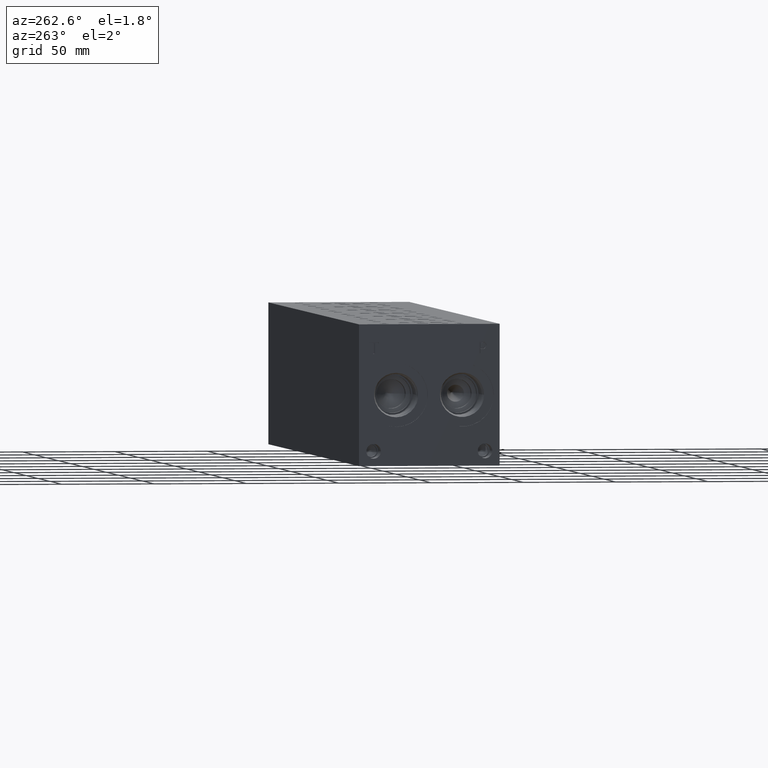
[diagram: clean part render]
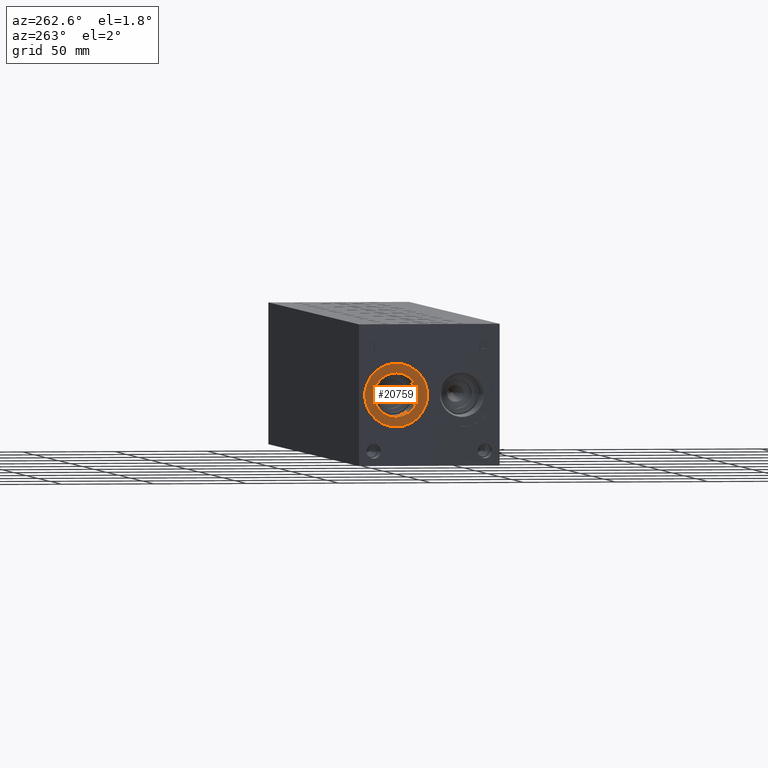
[diagram: same view with one face highlighted and labeled with its STEP entity id]
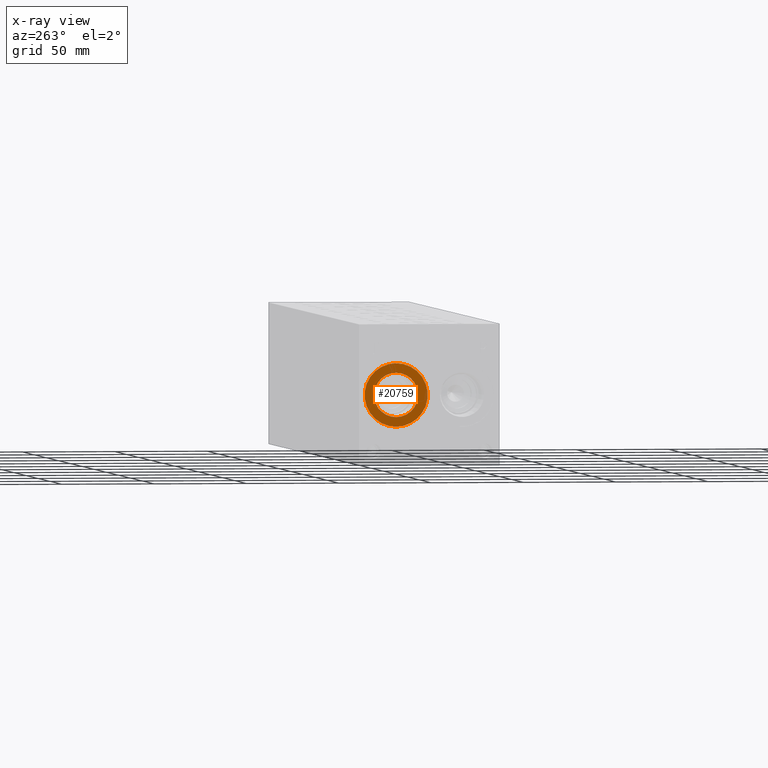
[diagram: x-ray of the same camera — body ghosted, the highlighted face saturated]
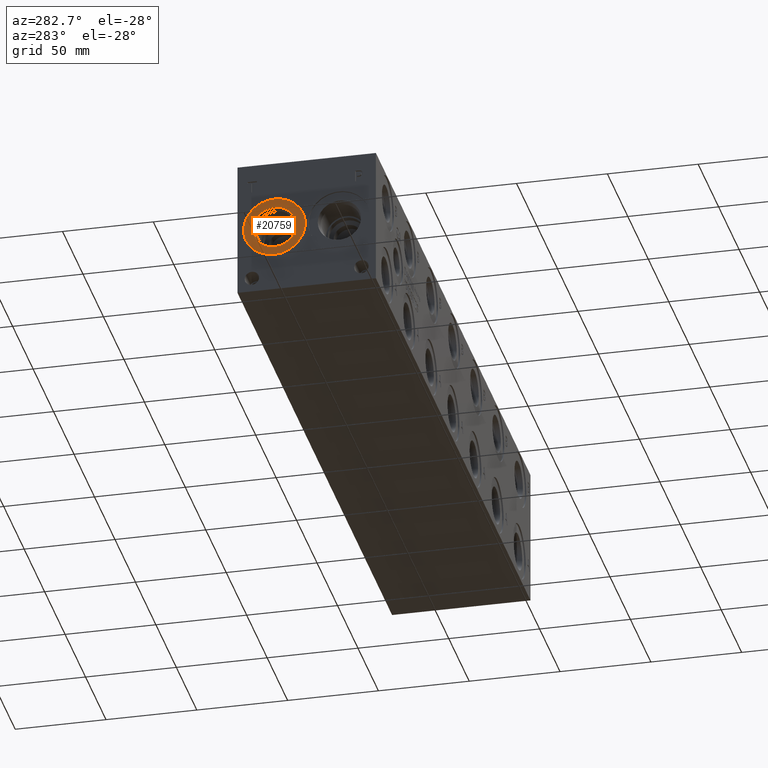
[diagram: same view with one face highlighted and labeled with its STEP entity id]
A machine part, auxiliary view. The second image highlights one B-rep face of the part: STEP entity #20759.
The next image is the same camera in x-ray: the body ghosted, the highlighted face saturated — about 0% of this face is hidden behind the body in this view.
A second angle (auxiliary view) of the same face is appended — the face is thin or edge-on in the first view.
In plain terms, the highlighted planar face has unit normal (1, 0, 0).
Its self-contained STEP definition (entity closure, byte-faithful):
#1078=CIRCLE('',#22354,17.0688);
#1079=CIRCLE('',#22355,17.0688);
#1080=CIRCLE('',#22357,11.9507);
#1081=CIRCLE('',#22358,11.9507);
#1246=FACE_BOUND('',#4331,.T.);
#3080=FACE_OUTER_BOUND('',#4330,.T.);
#4330=EDGE_LOOP('',(#18343,#18344));
#4331=EDGE_LOOP('',(#18345,#18346));
#9833=VERTEX_POINT('',#36227);
#9834=VERTEX_POINT('',#36229);
#9835=VERTEX_POINT('',#36233);
#9836=VERTEX_POINT('',#36234);
#12721=EDGE_CURVE('',#9833,#9834,#1078,.T.);
#12722=EDGE_CURVE('',#9834,#9833,#1079,.T.);
#12723=EDGE_CURVE('',#9835,#9836,#1080,.T.);
#12724=EDGE_CURVE('',#9836,#9835,#1081,.T.);
#18343=ORIENTED_EDGE('',*,*,#12722,.F.);
#18344=ORIENTED_EDGE('',*,*,#12721,.F.);
#18345=ORIENTED_EDGE('',*,*,#12723,.T.);
#18346=ORIENTED_EDGE('',*,*,#12724,.T.);
#19030=PLANE('',#22356);
#20759=ADVANCED_FACE('',(#3080,#1246),#19030,.F.);
#22354=AXIS2_PLACEMENT_3D('',#36230,#27215,#27216);
#22355=AXIS2_PLACEMENT_3D('',#36231,#27217,#27218);
#22356=AXIS2_PLACEMENT_3D('',#36232,#27219,#27220);
#22357=AXIS2_PLACEMENT_3D('',#36235,#27221,#27222);
#22358=AXIS2_PLACEMENT_3D('',#36236,#27223,#27224);
#27215=DIRECTION('center_axis',(1.,0.,0.));
#27216=DIRECTION('ref_axis',(0.,0.,-1.));
#27217=DIRECTION('center_axis',(1.,0.,0.));
#27218=DIRECTION('ref_axis',(0.,0.,-1.));
#27219=DIRECTION('center_axis',(1.,0.,0.));
#27220=DIRECTION('ref_axis',(0.,0.,-1.));
#27221=DIRECTION('center_axis',(1.,0.,0.));
#27222=DIRECTION('ref_axis',(0.,0.,-1.));
#27223=DIRECTION('center_axis',(1.,0.,0.));
#27224=DIRECTION('ref_axis',(0.,0.,-1.));
#36227=CARTESIAN_POINT('',(0.7874,55.9562,21.0312));
#36229=CARTESIAN_POINT('',(0.7874,55.9562,55.1688));
#36230=CARTESIAN_POINT('Origin',(0.7874,55.9562,38.1));
#36231=CARTESIAN_POINT('Origin',(0.7874,55.9562,38.1));
#36232=CARTESIAN_POINT('Origin',(0.7874,55.9562,50.0507));
#36233=CARTESIAN_POINT('',(0.7874,55.9562,50.0507));
#36234=CARTESIAN_POINT('',(0.787399999999999,55.9562,26.1493));
#36235=CARTESIAN_POINT('Origin',(0.7874,55.9562,38.1));
#36236=CARTESIAN_POINT('Origin',(0.7874,55.9562,38.1));